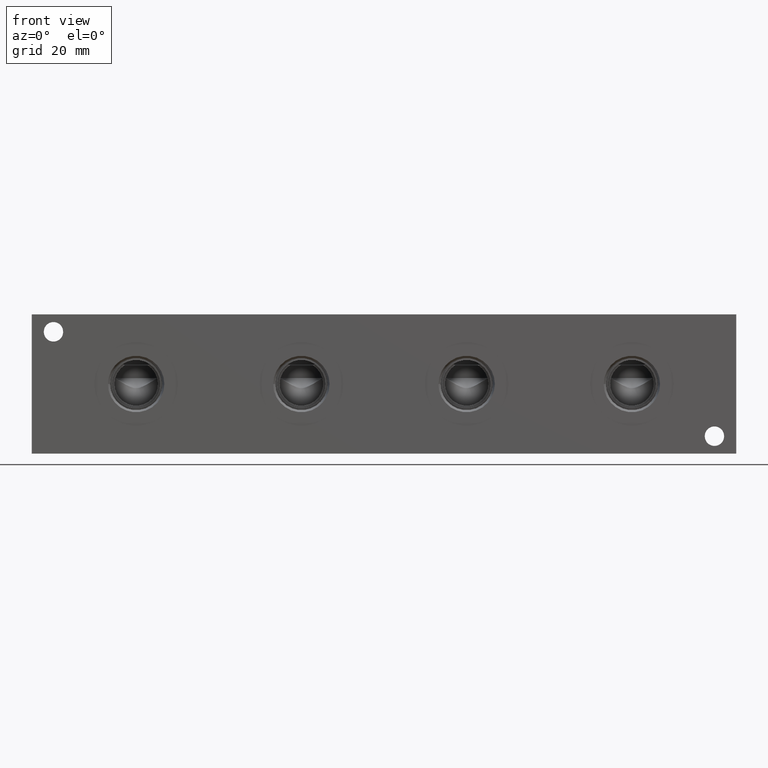
[diagram: clean part render]
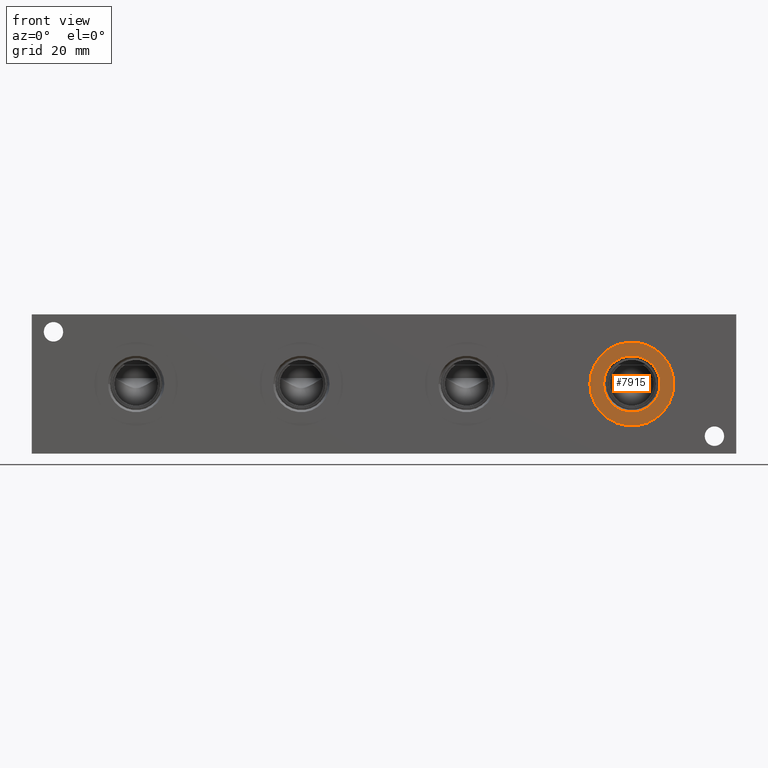
[diagram: same view with one face highlighted and labeled with its STEP entity id]
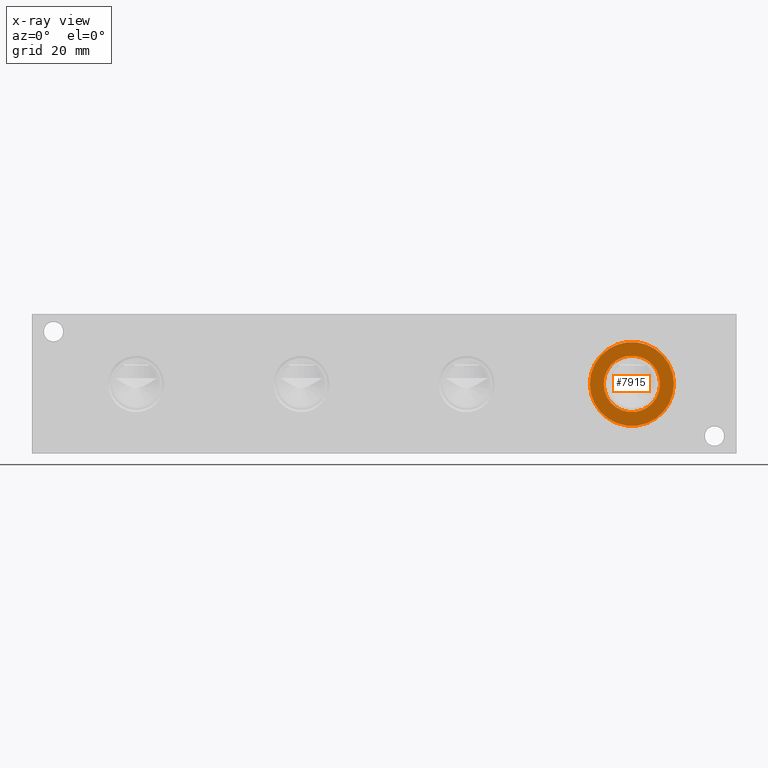
[diagram: x-ray of the same camera — body ghosted, the highlighted face saturated]
A machine part, front view. The second image highlights one B-rep face of the part: STEP entity #7915.
The next image is the same camera in x-ray: the body ghosted, the highlighted face saturated — about 0% of this face is hidden behind the body in this view.
In plain terms, the highlighted planar face has unit normal (0, 1, 0).
Its self-contained STEP definition (entity closure, byte-faithful):
#128=CIRCLE('',#8245,15.3162);
#129=CIRCLE('',#8246,15.3162);
#130=CIRCLE('',#8248,10.2997);
#131=CIRCLE('',#8249,10.2997);
#306=FACE_BOUND('',#1324,.T.);
#532=PLANE('',#8247);
#870=FACE_OUTER_BOUND('',#1323,.T.);
#1323=EDGE_LOOP('',(#6674,#6675));
#1324=EDGE_LOOP('',(#6676,#6677));
#3672=VERTEX_POINT('',#13432);
#3673=VERTEX_POINT('',#13434);
#3674=VERTEX_POINT('',#13438);
#3675=VERTEX_POINT('',#13439);
#4702=EDGE_CURVE('',#3672,#3673,#128,.T.);
#4703=EDGE_CURVE('',#3673,#3672,#129,.T.);
#4704=EDGE_CURVE('',#3674,#3675,#130,.T.);
#4705=EDGE_CURVE('',#3675,#3674,#131,.T.);
#6674=ORIENTED_EDGE('',*,*,#4703,.F.);
#6675=ORIENTED_EDGE('',*,*,#4702,.F.);
#6676=ORIENTED_EDGE('',*,*,#4704,.T.);
#6677=ORIENTED_EDGE('',*,*,#4705,.T.);
#7915=ADVANCED_FACE('',(#870,#306),#532,.F.);
#8245=AXIS2_PLACEMENT_3D('',#13435,#9570,#9571);
#8246=AXIS2_PLACEMENT_3D('',#13436,#9572,#9573);
#8247=AXIS2_PLACEMENT_3D('',#13437,#9574,#9575);
#8248=AXIS2_PLACEMENT_3D('',#13440,#9576,#9577);
#8249=AXIS2_PLACEMENT_3D('',#13441,#9578,#9579);
#9570=DIRECTION('center_axis',(0.,1.,0.));
#9571=DIRECTION('ref_axis',(1.,0.,0.));
#9572=DIRECTION('center_axis',(0.,1.,0.));
#9573=DIRECTION('ref_axis',(1.,0.,0.));
#9574=DIRECTION('center_axis',(0.,1.,0.));
#9575=DIRECTION('ref_axis',(0.,0.,1.));
#9576=DIRECTION('center_axis',(0.,1.,0.));
#9577=DIRECTION('ref_axis',(1.,0.,0.));
#9578=DIRECTION('center_axis',(0.,1.,0.));
#9579=DIRECTION('ref_axis',(1.,0.,0.));
#13432=CARTESIAN_POINT('',(203.7588,0.7874,25.4));
#13434=CARTESIAN_POINT('',(234.3912,0.7874,25.4));
#13435=CARTESIAN_POINT('Origin',(219.075,0.7874,25.4));
#13436=CARTESIAN_POINT('Origin',(219.075,0.7874,25.4));
#13437=CARTESIAN_POINT('Origin',(229.3747,0.7874,25.4));
#13438=CARTESIAN_POINT('',(229.3747,0.7874,25.4));
#13439=CARTESIAN_POINT('',(208.7753,0.787399999999999,25.4));
#13440=CARTESIAN_POINT('Origin',(219.075,0.7874,25.4));
#13441=CARTESIAN_POINT('Origin',(219.075,0.7874,25.4));